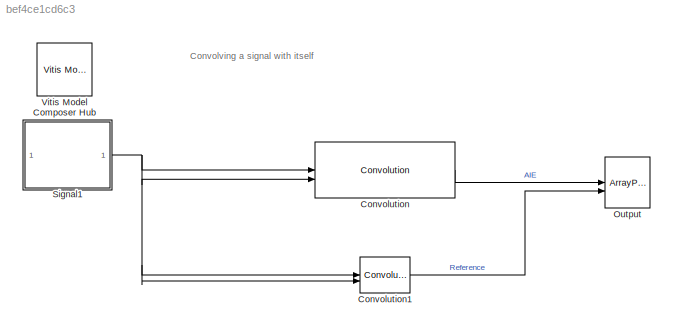
MODEL slx_bef4ce1cd6c3
KIND model
CONFIG AbsTol = auto
CONFIG EnableMultiTasking = off
CONFIG FixedStep = auto
CONFIG MaxStep = auto
CONFIG MinStep = auto
CONFIG RelTol = 1e-3
CONFIG SampleTimeConstraint = Unconstrained
CONFIG SolverName = VariableStepAuto
CONFIG StartTime = 0.0
CONFIG StopTime = 32/100e6
BLOCK [Reference] Convolution  REF=aieDSP/Convolution
  SourceBlock = aieDSP/Convolution
  SourceType = Convolution
BLOCK [Reference] Convolution1  REF=dspsigops/Convolution
  SourceBlock = dspsigops/Convolution
  SourceType = Convolution
BLOCK [ArrayPlot] Output
  GraphicalSettings = {"Style":{"BackgroundColor":[0.12941176470588237,0.12941176470588237,0.12941176470588237],"AxesColor":[0.070588235294117646,0.070588235294117646,0.070588235294117646],"LabelsColor":[0.85098039215686272,0.85098039215686272,0.85098039215686272],"PreserveColors":false,"Visible":[true,true],"LineStyle":["-","-"],"LineWidth":[1.5,1.5],"BarWidth":[0.9,0.9],"LineColor":[[1,0.90980392156862744,0.392156862...<+700ch>
  NumInputPorts = 2
  ScopeFrameLocation = window
  ShowLegend = on
  Visible = on
  WasSavedAsWebScope = on
  WindowPosition = [175.000000,166.000000,800.000000,516.000000,]
  YLimits = [-2 18]
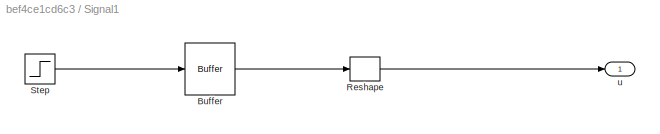
BLOCK [SubSystem] Signal1
BLOCK [Buffer] Signal1/Buffer
  N = 16
  OutputFrames = off
BLOCK [Reshape] Signal1/Reshape
BLOCK [Step] Signal1/Step
  OutDataTypeStr = single
  SampleTime = 1/100e6
  Time = 1/100e6
BLOCK [Outport] Signal1/u
BLOCK [Reference] Vitis Model Composer Hub  REF=vmcUtilities/Vitis Model Composer Hub
  SourceBlock = vmcUtilities/Vitis Model Composer Hub
  SourceType = VMC Hub
  Tag = genX
  UserDataPersistent = on
ANNOTATION (root): Convolving a signal with itself
LINE Convolution1:1 -> Output:2
LINE Convolution:1 -> Output:1
LINE Signal1/Buffer:1 -> Signal1/Reshape:1
LINE Signal1/Reshape:1 -> Signal1/u:1
LINE Signal1/Step:1 -> Signal1/Buffer:1
NET Signal1:1 -> Convolution1:1, Convolution1:2, Convolution:1, Convolution:2
note: NET lines group one-source signal fan-out (src -> all destinations, sorted); 1:1 wires keep LINE
